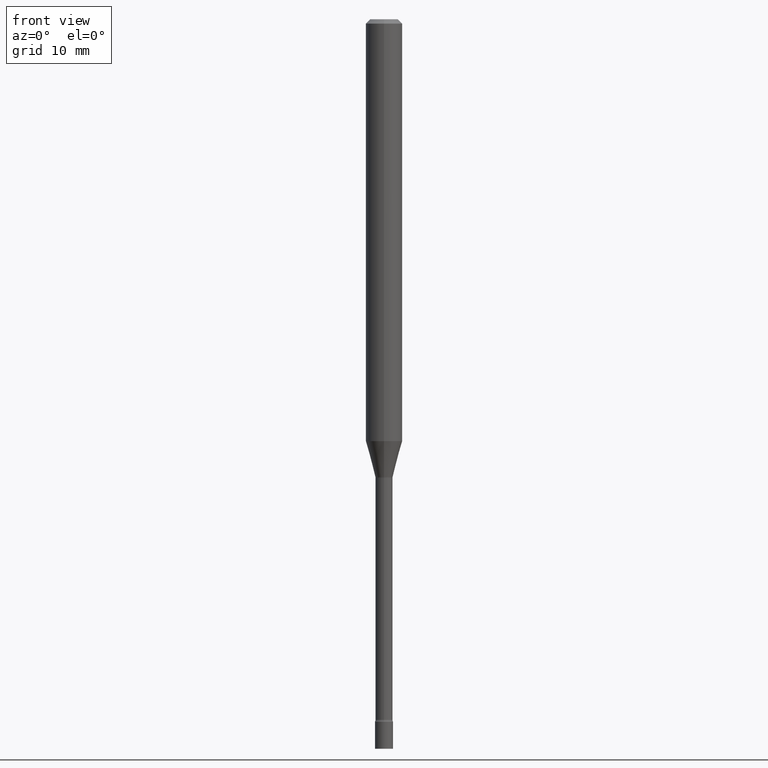
[diagram: clean part render]
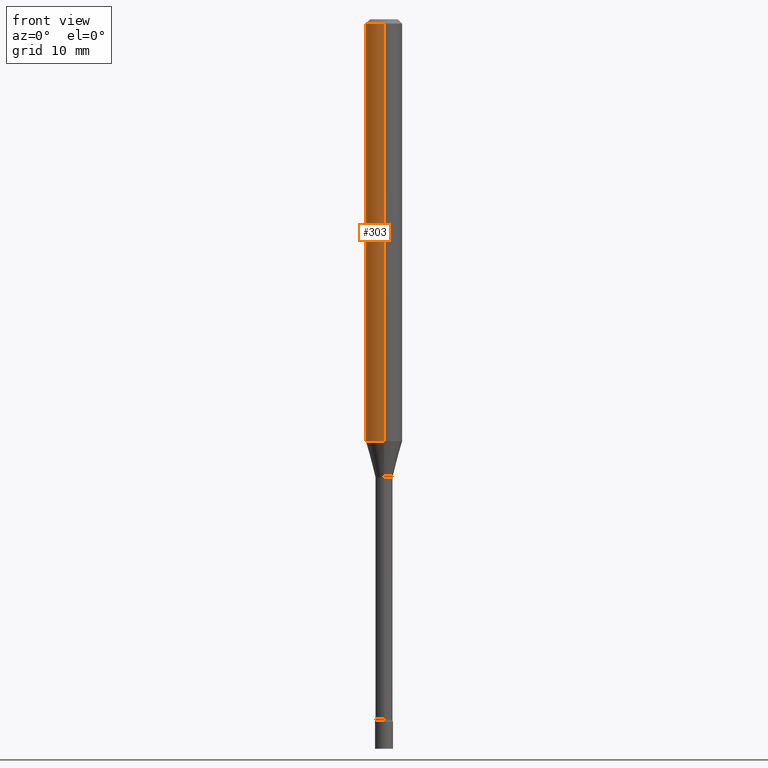
[diagram: same view with one face highlighted and labeled with its STEP entity id]
A machine part, front view. The second image highlights one B-rep face of the part: STEP entity #303.
In plain terms, the highlighted cylindrical surface (edge-blend (fillet) strip) has radius 1.5875 mm, axis along (-0, 0, 1).
Its self-contained STEP definition (entity closure, byte-faithful):
#1 = CARTESIAN_POINT ( 'NONE',  ( 4.440892098500625669E-16, 0.06250000000000000000, -2.182185064623508754E-16 ) ) ;
#4 = CIRCLE ( 'NONE', #493, 0.06250000000000000000 ) ;
#11 = CYLINDRICAL_SURFACE ( 'NONE', #474, 0.06250000000000000000 ) ;
#50 = DIRECTION ( 'NONE',  ( -2.445458496151855897E-29, 3.491496103397614401E-15, 1.000000000000000000 ) ) ;
#64 = EDGE_CURVE ( 'NONE', #271, #438, #279, .T. ) ;
#68 = DIRECTION ( 'NONE',  ( -2.445458496151855897E-29, 3.491496103397614401E-15, 1.000000000000000000 ) ) ;
#73 = DIRECTION ( 'NONE',  ( -2.445458496151855897E-29, 3.491496103397614007E-15, 1.000000000000000000 ) ) ;
#81 = CARTESIAN_POINT ( 'NONE',  ( -4.364351673553916201E-16, -0.06250000000000000000, 2.182185064623508754E-16 ) ) ;
#98 = EDGE_LOOP ( 'NONE', ( #440, #519, #199, #387 ) ) ;
#115 = EDGE_CURVE ( 'NONE', #195, #271, #4, .T. ) ;
#122 = CARTESIAN_POINT ( 'NONE',  ( 4.440892098500977205E-16, 0.06249999999999492767, -1.445536105567578167 ) ) ;
#126 = CARTESIAN_POINT ( 'NONE',  ( 3.534998550854499363E-29, -5.047083679909760712E-15, -1.445536105567577945 ) ) ;
#127 = DIRECTION ( 'NONE',  ( -6.982962677686265922E-15, -1.000000000000000000, 3.483106191921935554E-15 ) ) ;
#139 = CIRCLE ( 'NONE', #430, 0.06250000000000000000 ) ;
#151 = DIRECTION ( 'NONE',  ( -6.982962677686265922E-15, -1.000000000000000000, 4.370956789862821150E-15 ) ) ;
#195 = VERTEX_POINT ( 'NONE', #122 ) ;
#199 = ORIENTED_EDGE ( 'NONE', *, *, #64, .T. ) ;
#234 = CARTESIAN_POINT ( 'NONE',  ( -4.364351673553912750E-16, -0.06250000000000005551, -0.01499999999999981209 ) ) ;
#237 = CARTESIAN_POINT ( 'NONE',  ( -4.364351673553564172E-16, -0.06250000000000507927, -1.445536105567577723 ) ) ;
#253 = FACE_OUTER_BOUND ( 'NONE', #98, .T. ) ;
#255 = DIRECTION ( 'NONE',  ( -6.982962677686265922E-15, -1.000000000000000000, 3.491496103397614007E-15 ) ) ;
#271 = VERTEX_POINT ( 'NONE', #237 ) ;
#279 = LINE ( 'NONE', #81, #322 ) ;
#299 = VERTEX_POINT ( 'NONE', #329 ) ;
#303 = ADVANCED_FACE ( 'NONE', ( #253 ), #11, .T. ) ;
#319 = DIRECTION ( 'NONE',  ( -2.445458496151855897E-29, 3.491496103397614007E-15, 1.000000000000000000 ) ) ;
#322 = VECTOR ( 'NONE', #73, 39.37007874015748143 ) ;
#329 = CARTESIAN_POINT ( 'NONE',  ( 4.440892098500982135E-16, 0.06249999999999995837, -0.01500000000000024751 ) ) ;
#361 = LINE ( 'NONE', #1, #455 ) ;
#368 = DIRECTION ( 'NONE',  ( -2.445458496151855897E-29, 3.491496103397614401E-15, 1.000000000000000000 ) ) ;
#387 = ORIENTED_EDGE ( 'NONE', *, *, #453, .F. ) ;
#430 = AXIS2_PLACEMENT_3D ( 'NONE', #484, #368, #127 ) ;
#438 = VERTEX_POINT ( 'NONE', #234 ) ;
#440 = ORIENTED_EDGE ( 'NONE', *, *, #512, .F. ) ;
#453 = EDGE_CURVE ( 'NONE', #299, #438, #139, .T. ) ;
#455 = VECTOR ( 'NONE', #319, 39.37007874015748143 ) ;
#474 = AXIS2_PLACEMENT_3D ( 'NONE', #494, #50, #255 ) ;
#484 = CARTESIAN_POINT ( 'NONE',  ( 3.668187744227790975E-31, -5.237244155096431955E-17, -0.01500000000000003067 ) ) ;
#493 = AXIS2_PLACEMENT_3D ( 'NONE', #126, #68, #151 ) ;
#494 = CARTESIAN_POINT ( 'NONE',  ( 0.000000000000000000, 0.000000000000000000, 0.000000000000000000 ) ) ;
#512 = EDGE_CURVE ( 'NONE', #195, #299, #361, .T. ) ;
#519 = ORIENTED_EDGE ( 'NONE', *, *, #115, .T. ) ;